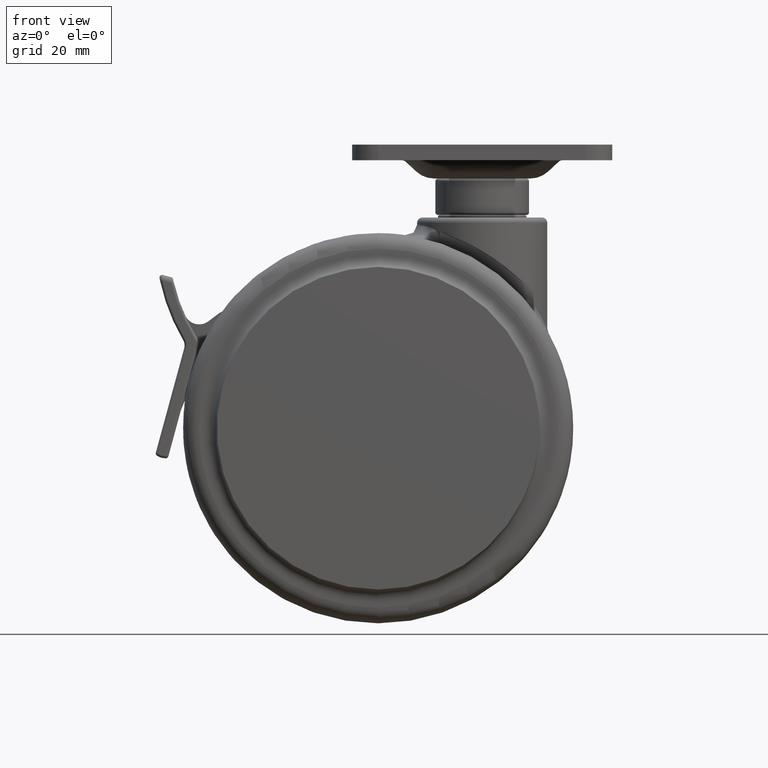
[diagram: clean part render]
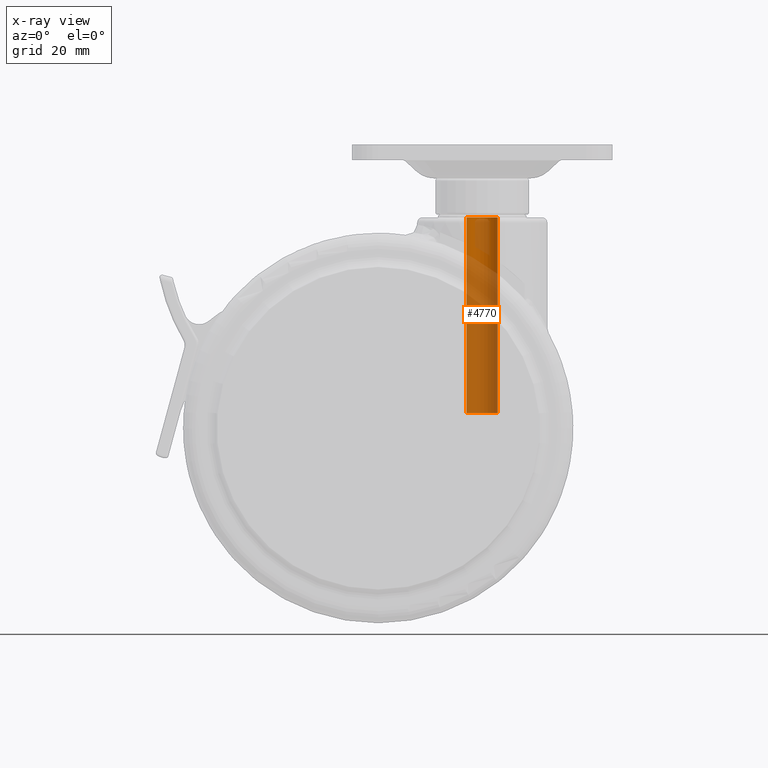
[diagram: x-ray — body ghosted, one internal face saturated and labeled with its STEP entity id]
A machine part, front view, then the same camera in x-ray: the body is ghosted and one INTERNAL B-rep face — a face not visible from any outside direction — is saturated and labeled: STEP entity #4770.
In plain terms, the highlighted cylindrical surface (edge-blend (fillet) strip) has radius 3 mm, axis along (0, 0, 1).
Its self-contained STEP definition (entity closure, byte-faithful):
#594 = CIRCLE ( 'NONE', #2844, 3.000000000000000000 ) ;
#653 = VECTOR ( 'NONE', #3744, 1000.000000000000000 ) ;
#814 = DIRECTION ( 'NONE',  ( 0.0000000000000000000, 0.0000000000000000000, 1.000000000000000000 ) ) ;
#1039 = ORIENTED_EDGE ( 'NONE', *, *, #5315, .F. ) ;
#1391 = VECTOR ( 'NONE', #3007, 1000.000000000000000 ) ;
#1907 = AXIS2_PLACEMENT_3D ( 'NONE', #2720, #7623, #3421 ) ;
#2049 = DIRECTION ( 'NONE',  ( -0.0000000000000000000, -0.0000000000000000000, 1.000000000000000000 ) ) ;
#2196 = EDGE_CURVE ( 'NONE', #5254, #5127, #4391, .T. ) ;
#2237 = DIRECTION ( 'NONE',  ( 1.000000000000000000, 0.0000000000000000000, 0.0000000000000000000 ) ) ;
#2479 = CIRCLE ( 'NONE', #1907, 3.000000000000000000 ) ;
#2720 = CARTESIAN_POINT ( 'NONE',  ( 0.0000000000000000000, 2.842170943040399500E-014, -37.61339081420354800 ) ) ;
#2844 = AXIS2_PLACEMENT_3D ( 'NONE', #6248, #2049, #6939 ) ;
#3007 = DIRECTION ( 'NONE',  ( 0.0000000000000000000, 0.0000000000000000000, 1.000000000000000000 ) ) ;
#3067 = ORIENTED_EDGE ( 'NONE', *, *, #2196, .F. ) ;
#3421 = DIRECTION ( 'NONE',  ( -1.000000000000000000, 0.0000000000000000000, 0.0000000000000000000 ) ) ;
#3744 = DIRECTION ( 'NONE',  ( 0.0000000000000000000, 0.0000000000000000000, 1.000000000000000000 ) ) ;
#3914 = FACE_OUTER_BOUND ( 'NONE', #5847, .T. ) ;
#3931 = CARTESIAN_POINT ( 'NONE',  ( -3.000000000000000000, 2.878910347014820000E-014, 0.0000000000000000000 ) ) ;
#4391 = LINE ( 'NONE', #5819, #653 ) ;
#4394 = EDGE_CURVE ( 'NONE', #6352, #8046, #5137, .T. ) ;
#4770 = ADVANCED_FACE ( 'NONE', ( #3914 ), #7412, .F. ) ;
#5069 = CARTESIAN_POINT ( 'NONE',  ( 3.000000000000000000, 2.842170943040399500E-014, 0.0000000000000000000 ) ) ;
#5127 = VERTEX_POINT ( 'NONE', #3931 ) ;
#5137 = LINE ( 'NONE', #7194, #1391 ) ;
#5245 = CARTESIAN_POINT ( 'NONE',  ( 3.000000000000000000, 2.842170943040399500E-014, -37.61339081420354800 ) ) ;
#5254 = VERTEX_POINT ( 'NONE', #8960 ) ;
#5315 = EDGE_CURVE ( 'NONE', #6352, #5254, #2479, .T. ) ;
#5318 = ORIENTED_EDGE ( 'NONE', *, *, #5332, .T. ) ;
#5332 = EDGE_CURVE ( 'NONE', #8046, #5127, #594, .T. ) ;
#5819 = CARTESIAN_POINT ( 'NONE',  ( -3.000000000000000000, 2.878910347014820000E-014, -1000.000000000000000 ) ) ;
#5847 = EDGE_LOOP ( 'NONE', ( #3067, #1039, #8635, #5318 ) ) ;
#6248 = CARTESIAN_POINT ( 'NONE',  ( 0.0000000000000000000, 2.842170943040399500E-014, 0.0000000000000000000 ) ) ;
#6352 = VERTEX_POINT ( 'NONE', #5245 ) ;
#6939 = DIRECTION ( 'NONE',  ( -1.000000000000000000, 0.0000000000000000000, 0.0000000000000000000 ) ) ;
#7194 = CARTESIAN_POINT ( 'NONE',  ( 3.000000000000000000, 2.842170943040399500E-014, -1000.000000000000000 ) ) ;
#7412 = CYLINDRICAL_SURFACE ( 'NONE', #8812, 3.000000000000000000 ) ;
#7623 = DIRECTION ( 'NONE',  ( -0.0000000000000000000, -0.0000000000000000000, 1.000000000000000000 ) ) ;
#8046 = VERTEX_POINT ( 'NONE', #5069 ) ;
#8566 = CARTESIAN_POINT ( 'NONE',  ( 0.0000000000000000000, 2.842170943040399500E-014, -1000.000000000000000 ) ) ;
#8635 = ORIENTED_EDGE ( 'NONE', *, *, #4394, .T. ) ;
#8812 = AXIS2_PLACEMENT_3D ( 'NONE', #8566, #814, #2237 ) ;
#8960 = CARTESIAN_POINT ( 'NONE',  ( -3.000000000000000000, 2.878910347014820000E-014, -37.61339081420354800 ) ) ;